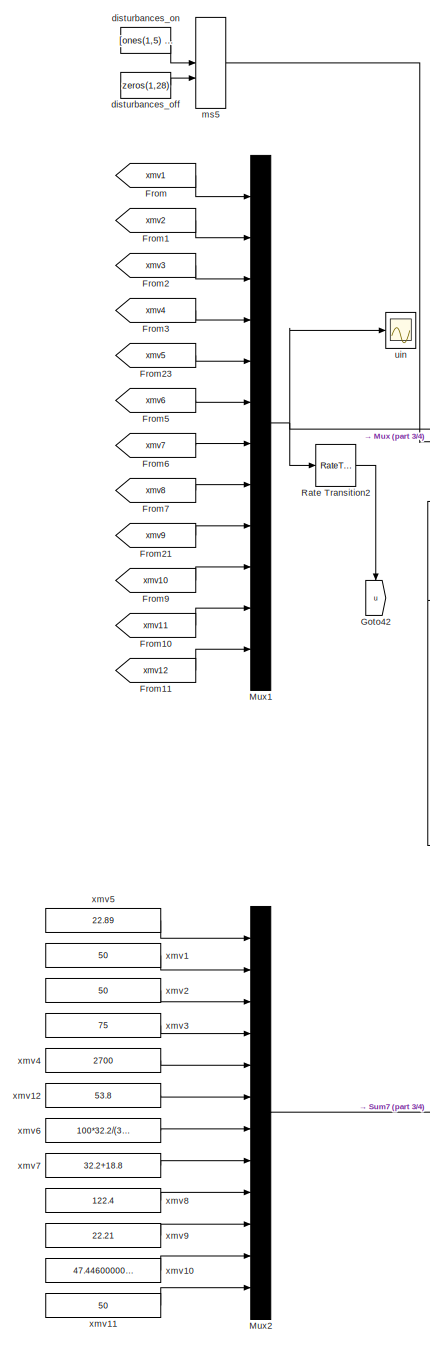
[diagram: root canvas - part 1/4, middle left region]
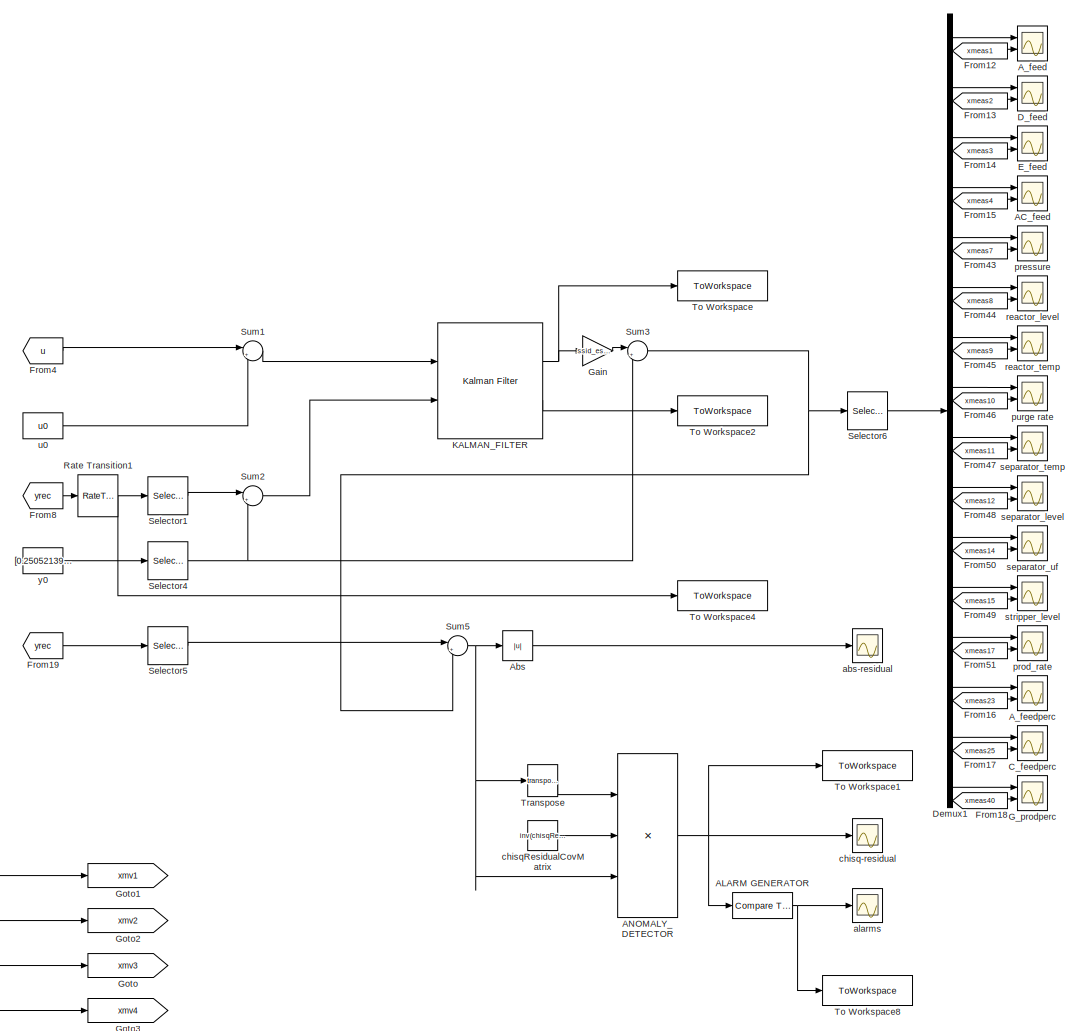
[diagram: root canvas - part 2/4, top right region]
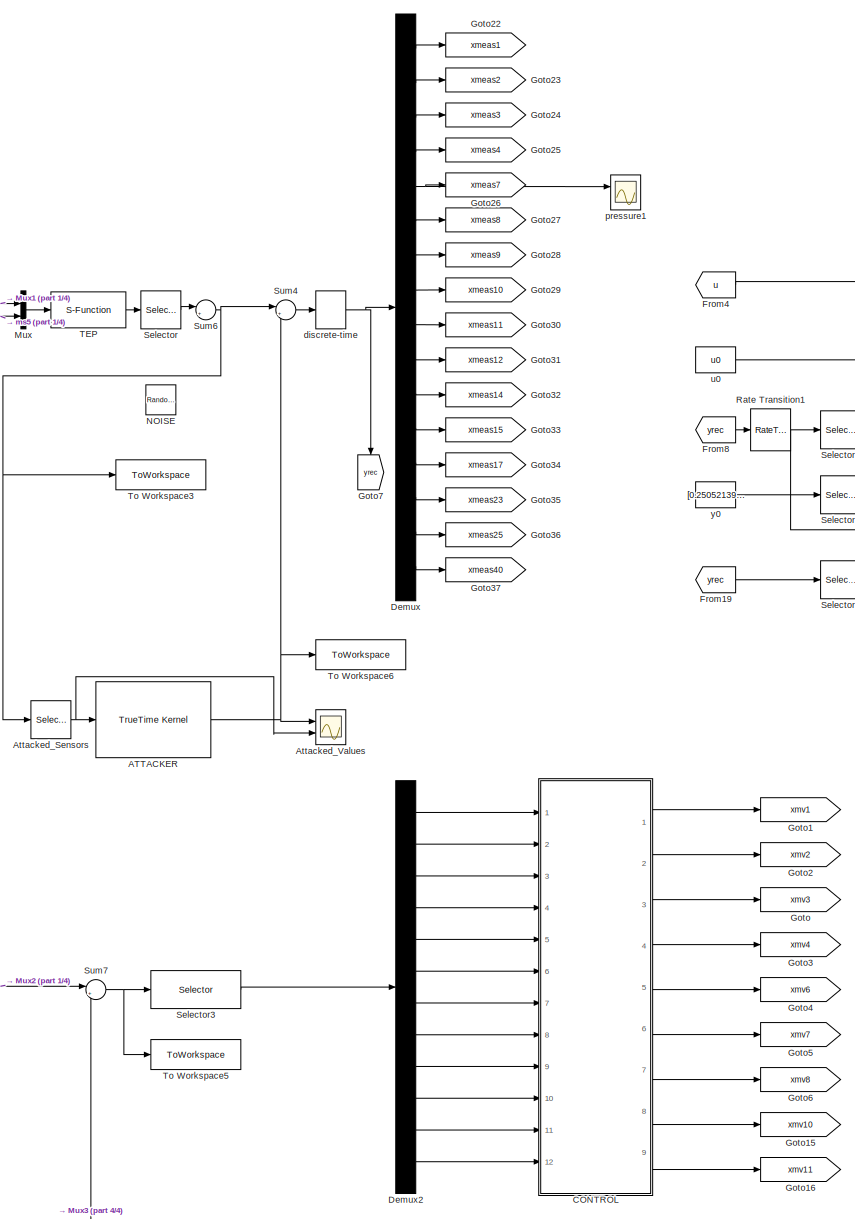
[diagram: root canvas - part 3/4, central region]
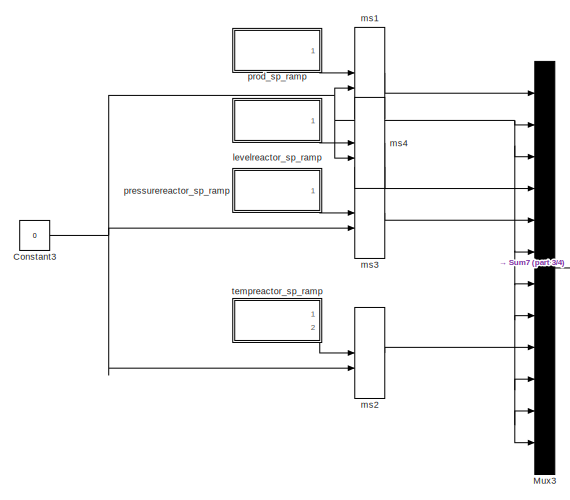
[diagram: root canvas - part 4/4, bottom left region]
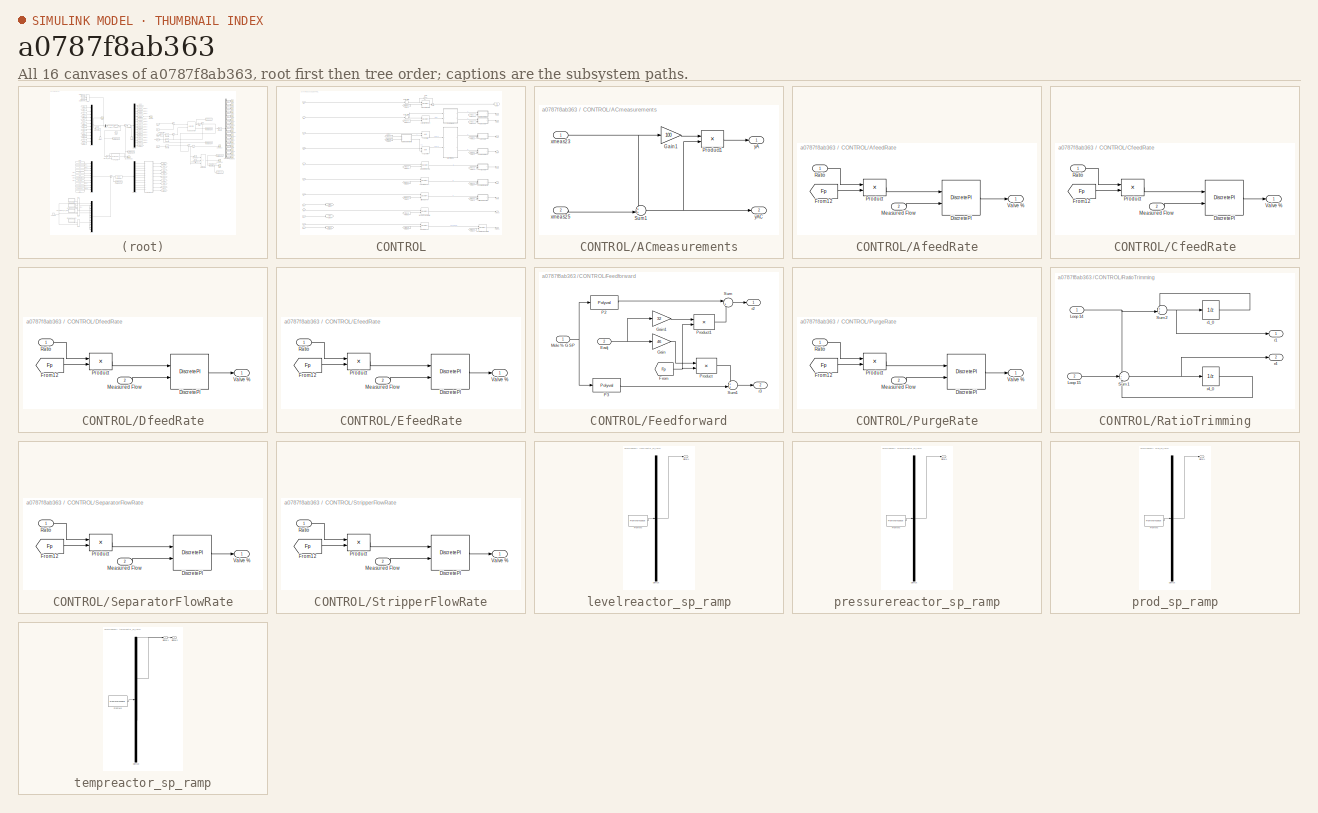
[diagram: thumbnail index - all 16 canvases of the model, root first then tree order]
MODEL slx_a0787f8ab363
KIND model
CONFIG AbsTol = auto
CONFIG EnableMultiTasking = off
CONFIG FixedStep = auto
CONFIG MaxStep = auto
CONFIG MinStep = auto
CONFIG RelTol = 1e-3
CONFIG SampleTimeConstraint = Unconstrained
CONFIG SolverName = VariableStepAuto
CONFIG StartTime = 0.0
CONFIG StopTime = 100
BLOCK [Scope] AC_feed
  Floating = off
  NumInputPorts = 2
  Ports = [2]
  ScopeSpecificationString = Simulink.scopes.TimeScopeBlockCfg('CurrentConfiguration', extmgr.ConfigurationSet(extmgr.Configuration('Core','General UI',true),extmgr.Configuration('Core','Source UI',true),extmgr.Configuration('Sources','WiredSimulink',true,'DataLoggingVariableName','ScopeData4','DataLoggingSaveFormat','StructureWithTime','DataLoggingDecimation','1','DataLoggingDecimateData',true),extmgr.Configuration('Visuals'...<+2075ch>
BLOCK [Reference] ALARM GENERATOR  REF=simulink/Logic and Bit
Operations/Compare
To Constant
  Ports = [1, 1]
  SourceBlock = simulink/Logic and Bit\nOperations/Compare\nTo Constant
  SourceProductBaseCode = SL
  SourceType = Compare To Constant
BLOCK [Product] ANOMALY_DETECTOR
  Inputs = 3
  Multiplication = Matrix(*)
  Ports = [3, 1]
BLOCK [Reference] ATTACKER  REF=truetime/TrueTime Kernel  (lib defined in slx_0362a698a4ec)
  Ports = [1, 1]
  SourceBlock = truetime/TrueTime Kernel
BLOCK [Scope] A_feed
  Floating = off
  NumInputPorts = 2
  Ports = [2]
  ScopeSpecificationString = Simulink.scopes.TimeScopeBlockCfg('CurrentConfiguration', extmgr.ConfigurationSet(extmgr.Configuration('Core','General UI',true),extmgr.Configuration('Core','Source UI',true),extmgr.Configuration('Sources','WiredSimulink',true,'DataLoggingVariableName','ScopeData1','DataLoggingSaveFormat','StructureWithTime','DataLoggingDecimation','1','DataLoggingDecimateData',true),extmgr.Configuration('Visuals'...<+2073ch>
BLOCK [Scope] A_feedperc
  Floating = off
  NumInputPorts = 2
  Ports = [2]
  ScopeSpecificationString = Simulink.scopes.TimeScopeBlockCfg('CurrentConfiguration', extmgr.ConfigurationSet(extmgr.Configuration('Core','General UI',true),extmgr.Configuration('Core','Source UI',true),extmgr.Configuration('Sources','WiredSimulink',true,'DataLoggingVariableName','ScopeData5','DataLoggingSaveFormat','StructureWithTime','DataLoggingDecimation','1','DataLoggingDecimateData',true),extmgr.Configuration('Visuals'...<+2089ch>
BLOCK [Abs] Abs
  SaturateOnIntegerOverflow = off
  ZeroCross = off
BLOCK [Selector] Attacked_Sensors
  IndexOptions = Index vector (dialog)
  Indices = [5   6   7   9  10  12]
  InputPortWidth = 16
  OutputSizes = 1
  Ports = [1, 1]
BLOCK [Scope] Attacked_Values
  Floating = off
  NumInputPorts = 2
  Ports = [2]
  ScopeSpecificationString = Simulink.scopes.TimeScopeBlockCfg('CurrentConfiguration', extmgr.ConfigurationSet(extmgr.Configuration('Core','General UI',true),extmgr.Configuration('Core','Source UI',true),extmgr.Configuration('Sources','WiredSimulink',true,'DataLoggingVariableName','ScopeData1','DataLoggingSaveFormat','StructureWithTime','DataLoggingDecimation','1','DataLoggingDecimateData',true),extmgr.Configuration('Visuals'...<+2774ch>
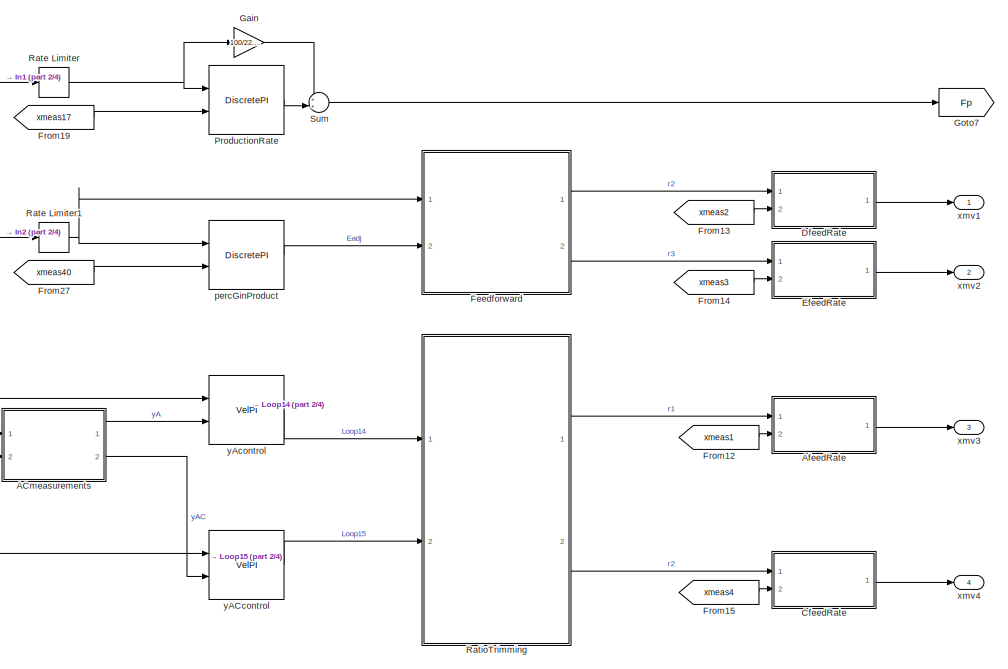
[diagram: CONTROL - part 1/4, top right region]
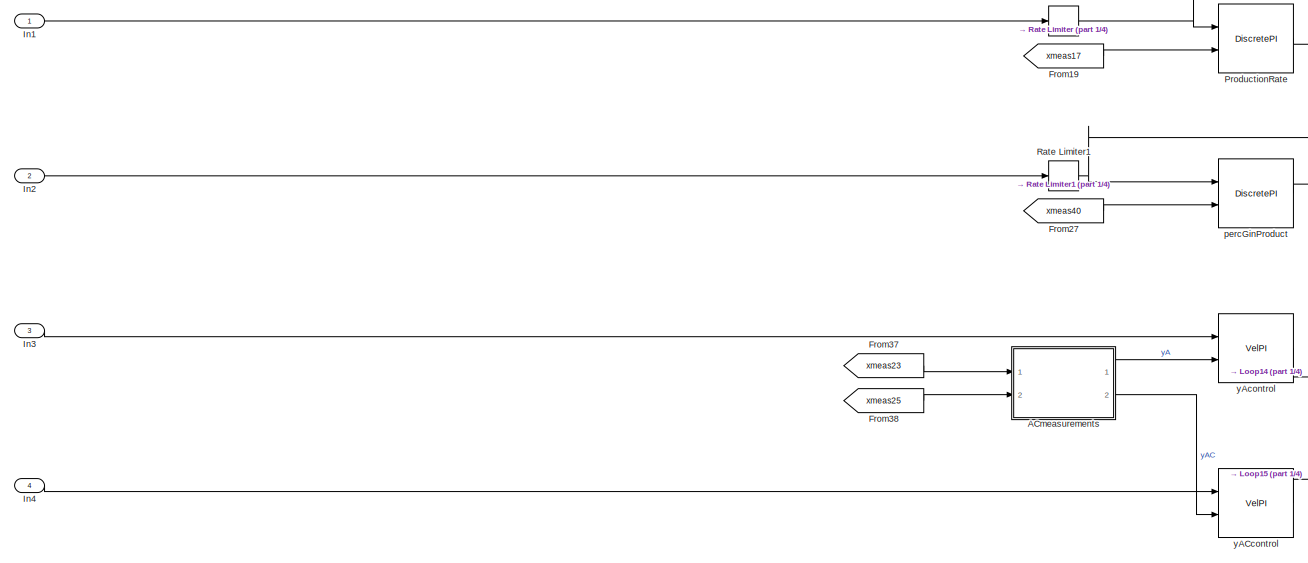
[diagram: CONTROL - part 2/4, top left region]
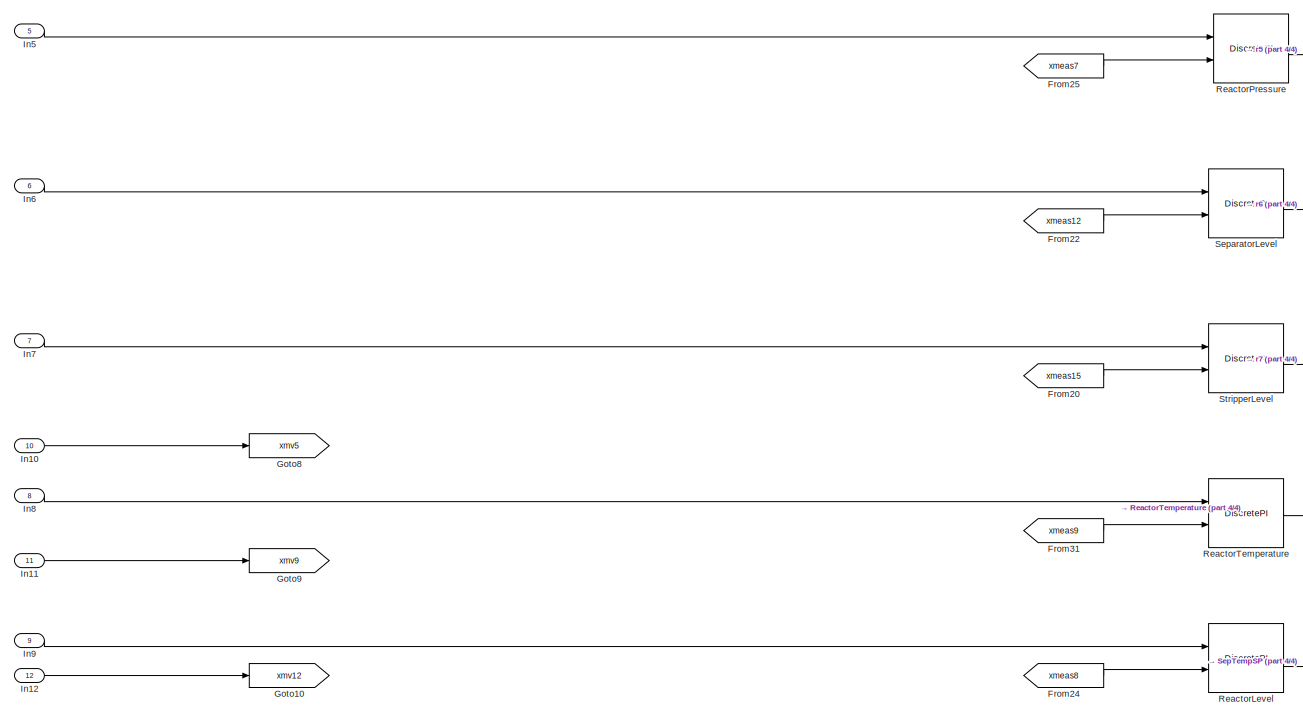
[diagram: CONTROL - part 3/4, bottom left region]
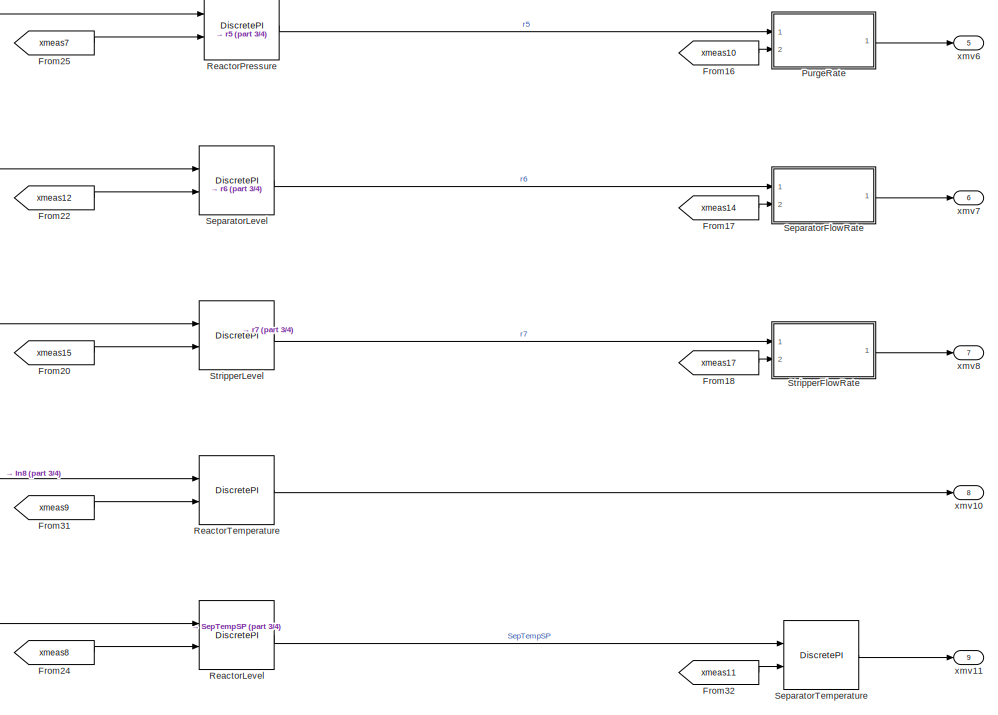
[diagram: CONTROL - part 4/4, bottom right region]
BLOCK [SubSystem] CONTROL
  Ports = [12, 9]
  RequestExecContextInheritance = off
BLOCK [SubSystem] CONTROL/ACmeasurements
  Ports = [2, 2]
  RequestExecContextInheritance = off
BLOCK [Gain] CONTROL/ACmeasurements/Gain1
  Gain = 100
  OutDataTypeStr = Inherit: Same as input
  ParamDataTypeStr = Inherit: Same as input
  SaturateOnIntegerOverflow = on
BLOCK [Product] CONTROL/ACmeasurements/Product1
  Inputs = */
  OutDataTypeStr = Inherit: Same as first input
  Ports = [2, 1]
  SaturateOnIntegerOverflow = on
BLOCK [Sum] CONTROL/ACmeasurements/Sum1
  Inputs = ++|
  Ports = [2, 1]
  SaturateOnIntegerOverflow = on
BLOCK [Inport] CONTROL/ACmeasurements/xmeas23
BLOCK [Inport] CONTROL/ACmeasurements/xmeas25
  Port = 2
BLOCK [Outport] CONTROL/ACmeasurements/yA
BLOCK [Outport] CONTROL/ACmeasurements/yAC
  Port = 2
BLOCK [SubSystem] CONTROL/AfeedRate
  Ports = [2, 1]
  RequestExecContextInheritance = off
BLOCK [Reference] CONTROL/AfeedRate/DiscretePI  REF=TElib/DiscretePI
  Ports = [2, 1]
  SourceBlock = TElib/DiscretePI
BLOCK [From] CONTROL/AfeedRate/From12
  GotoTag = Fp
  TagVisibility = global
BLOCK [Inport] CONTROL/AfeedRate/Measured Flow
  Port = 2
BLOCK [Product] CONTROL/AfeedRate/Product
  OutDataTypeStr = Inherit: Same as first input
  Ports = [2, 1]
  SaturateOnIntegerOverflow = on
BLOCK [Inport] CONTROL/AfeedRate/Ratio
BLOCK [Outport] CONTROL/AfeedRate/Valve %
BLOCK [SubSystem] CONTROL/CfeedRate
  Ports = [2, 1]
  RequestExecContextInheritance = off
BLOCK [Reference] CONTROL/CfeedRate/DiscretePI  REF=TElib/DiscretePI
  Ports = [2, 1]
  SourceBlock = TElib/DiscretePI
BLOCK [From] CONTROL/CfeedRate/From12
  GotoTag = Fp
  TagVisibility = global
BLOCK [Inport] CONTROL/CfeedRate/Measured Flow
  Port = 2
BLOCK [Product] CONTROL/CfeedRate/Product
  OutDataTypeStr = Inherit: Same as first input
  Ports = [2, 1]
  SaturateOnIntegerOverflow = on
BLOCK [Inport] CONTROL/CfeedRate/Ratio
BLOCK [Outport] CONTROL/CfeedRate/Valve %
BLOCK [SubSystem] CONTROL/DfeedRate
  Ports = [2, 1]
  RequestExecContextInheritance = off
BLOCK [Reference] CONTROL/DfeedRate/DiscretePI  REF=TElib/DiscretePI
  Ports = [2, 1]
  SourceBlock = TElib/DiscretePI
BLOCK [From] CONTROL/DfeedRate/From12
  GotoTag = Fp
  TagVisibility = global
BLOCK [Inport] CONTROL/DfeedRate/Measured Flow
  Port = 2
BLOCK [Product] CONTROL/DfeedRate/Product
  OutDataTypeStr = Inherit: Same as first input
  Ports = [2, 1]
  SaturateOnIntegerOverflow = on
BLOCK [Inport] CONTROL/DfeedRate/Ratio
BLOCK [Outport] CONTROL/DfeedRate/Valve %
BLOCK [SubSystem] CONTROL/EfeedRate
  Ports = [2, 1]
  RequestExecContextInheritance = off
BLOCK [Reference] CONTROL/EfeedRate/DiscretePI  REF=TElib/DiscretePI
  Ports = [2, 1]
  SourceBlock = TElib/DiscretePI
BLOCK [From] CONTROL/EfeedRate/From12
  GotoTag = Fp
  TagVisibility = global
BLOCK [Inport] CONTROL/EfeedRate/Measured Flow
  Port = 2
BLOCK [Product] CONTROL/EfeedRate/Product
  OutDataTypeStr = Inherit: Same as first input
  Ports = [2, 1]
  SaturateOnIntegerOverflow = on
BLOCK [Inport] CONTROL/EfeedRate/Ratio
BLOCK [Outport] CONTROL/EfeedRate/Valve %
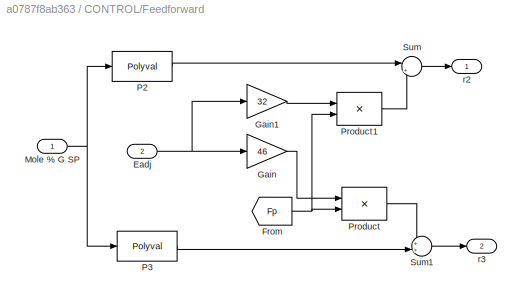
BLOCK [SubSystem] CONTROL/Feedforward
  Ports = [2, 2]
  RequestExecContextInheritance = off
BLOCK [Inport] CONTROL/Feedforward/Eadj
  Port = 2
BLOCK [From] CONTROL/Feedforward/From
  GotoTag = Fp
  TagVisibility = global
BLOCK [Gain] CONTROL/Feedforward/Gain
  Gain = 46
  OutDataTypeStr = Inherit: Same as input
  ParamDataTypeStr = Inherit: Same as input
  SaturateOnIntegerOverflow = on
BLOCK [Gain] CONTROL/Feedforward/Gain1
  Gain = 32
  OutDataTypeStr = Inherit: Same as input
  ParamDataTypeStr = Inherit: Same as input
  SaturateOnIntegerOverflow = on
BLOCK [Inport] CONTROL/Feedforward/Mole % G SP
BLOCK [Polyval] CONTROL/Feedforward/P2
  Coefs = [1.5192e-003  5.9446e-001  2.7690e-001]
BLOCK [Polyval] CONTROL/Feedforward/P3
  Coefs = [-1.1377e-003 -8.0893e-001  9.1060e+001]
BLOCK [Product] CONTROL/Feedforward/Product
  Inputs = */
  OutDataTypeStr = Inherit: Same as first input
  Ports = [2, 1]
  SaturateOnIntegerOverflow = on
BLOCK [Product] CONTROL/Feedforward/Product1
  Inputs = */
  OutDataTypeStr = Inherit: Same as first input
  Ports = [2, 1]
  SaturateOnIntegerOverflow = on
BLOCK [Sum] CONTROL/Feedforward/Sum
  Inputs = |+-
  Ports = [2, 1]
  SaturateOnIntegerOverflow = on
BLOCK [Sum] CONTROL/Feedforward/Sum1
  Inputs = ++|
  Ports = [2, 1]
  SaturateOnIntegerOverflow = on
BLOCK [Outport] CONTROL/Feedforward/r2
BLOCK [Outport] CONTROL/Feedforward/r3
  Port = 2
BLOCK [From] CONTROL/From12
  GotoTag = xmeas1
  TagVisibility = global
BLOCK [From] CONTROL/From13
  GotoTag = xmeas2
  TagVisibility = global
BLOCK [From] CONTROL/From14
  GotoTag = xmeas3
  TagVisibility = global
BLOCK [From] CONTROL/From15
  GotoTag = xmeas4
  TagVisibility = global
BLOCK [From] CONTROL/From16
  GotoTag = xmeas10
  TagVisibility = global
BLOCK [From] CONTROL/From17
  GotoTag = xmeas14
  TagVisibility = global
BLOCK [From] CONTROL/From18
  GotoTag = xmeas17
  TagVisibility = global
BLOCK [From] CONTROL/From19
  GotoTag = xmeas17
  TagVisibility = global
BLOCK [From] CONTROL/From20
  GotoTag = xmeas15
  TagVisibility = global
BLOCK [From] CONTROL/From22
  GotoTag = xmeas12
  TagVisibility = global
BLOCK [From] CONTROL/From24
  GotoTag = xmeas8
  TagVisibility = global
BLOCK [From] CONTROL/From25
  GotoTag = xmeas7
  TagVisibility = global
BLOCK [From] CONTROL/From27
  GotoTag = xmeas40
  TagVisibility = global
BLOCK [From] CONTROL/From31
  GotoTag = xmeas9
  TagVisibility = global
BLOCK [From] CONTROL/From32
  GotoTag = xmeas11
  TagVisibility = global
BLOCK [From] CONTROL/From37
  GotoTag = xmeas23
  TagVisibility = global
BLOCK [From] CONTROL/From38
  GotoTag = xmeas25
  TagVisibility = global
BLOCK [Gain] CONTROL/Gain
  Gain = 100/22.89
  OutDataTypeStr = Inherit: Same as input
  ParamDataTypeStr = Inherit: Same as input
  SaturateOnIntegerOverflow = on
BLOCK [Goto] CONTROL/Goto10
  GotoTag = xmv12
  TagVisibility = global
BLOCK [Goto] CONTROL/Goto7
  GotoTag = Fp
  TagVisibility = global
BLOCK [Goto] CONTROL/Goto8
  GotoTag = xmv5
  TagVisibility = global
BLOCK [Goto] CONTROL/Goto9
  GotoTag = xmv9
  TagVisibility = global
BLOCK [Inport] CONTROL/In1
BLOCK [Inport] CONTROL/In10
  Port = 10
BLOCK [Inport] CONTROL/In11
  Port = 11
BLOCK [Inport] CONTROL/In12
  Port = 12
BLOCK [Inport] CONTROL/In2
  Port = 2
BLOCK [Inport] CONTROL/In3
  Port = 3
BLOCK [Inport] CONTROL/In4
  Port = 4
BLOCK [Inport] CONTROL/In5
  Port = 5
BLOCK [Inport] CONTROL/In6
  Port = 6
BLOCK [Inport] CONTROL/In7
  Port = 7
BLOCK [Inport] CONTROL/In8
  Port = 8
BLOCK [Inport] CONTROL/In9
  Port = 9
BLOCK [Reference] CONTROL/ProductionRate  REF=TElib/DiscretePI
  Ports = [2, 1]
  SourceBlock = TElib/DiscretePI
BLOCK [SubSystem] CONTROL/PurgeRate
  Ports = [2, 1]
  RequestExecContextInheritance = off
BLOCK [Reference] CONTROL/PurgeRate/DiscretePI  REF=TElib/DiscretePI
  Ports = [2, 1]
  SourceBlock = TElib/DiscretePI
BLOCK [From] CONTROL/PurgeRate/From12
  GotoTag = Fp
  TagVisibility = global
BLOCK [Inport] CONTROL/PurgeRate/Measured Flow
  Port = 2
BLOCK [Product] CONTROL/PurgeRate/Product
  OutDataTypeStr = Inherit: Same as first input
  Ports = [2, 1]
  SaturateOnIntegerOverflow = on
BLOCK [Inport] CONTROL/PurgeRate/Ratio
BLOCK [Outport] CONTROL/PurgeRate/Valve %
BLOCK [RateLimiter] CONTROL/Rate Limiter
  FallingSlewLimit = -0.3*22.95/24
  RisingSlewLimit = 0.3*22.95/24
BLOCK [RateLimiter] CONTROL/Rate Limiter1
  FallingSlewLimit = -50/24
  RisingSlewLimit = 50/24
BLOCK [SubSystem] CONTROL/RatioTrimming
  Ports = [2, 2]
  RequestExecContextInheritance = off
BLOCK [Inport] CONTROL/RatioTrimming/Loop 14
BLOCK [Inport] CONTROL/RatioTrimming/Loop 15
  Port = 2
BLOCK [Sum] CONTROL/RatioTrimming/Sum1
  Inputs = -++
  Ports = [3, 1]
  SaturateOnIntegerOverflow = on
BLOCK [Sum] CONTROL/RatioTrimming/Sum2
  Inputs = ++|
  Ports = [2, 1]
  SaturateOnIntegerOverflow = on
BLOCK [Outport] CONTROL/RatioTrimming/r1
BLOCK [UnitDelay] CONTROL/RatioTrimming/r1_0
  HasFrameUpgradeWarning = on
  InitialCondition = 0.0043115
  SampleTime = 0.1
BLOCK [Outport] CONTROL/RatioTrimming/r4
  Port = 2
BLOCK [UnitDelay] CONTROL/RatioTrimming/r4_0
  HasFrameUpgradeWarning = on
  InitialCondition = 0.08929
  SampleTime = 0.1
BLOCK [Reference] CONTROL/ReactorLevel  REF=TElib/DiscretePI
  Ports = [2, 1]
  SourceBlock = TElib/DiscretePI
BLOCK [Reference] CONTROL/ReactorPressure  REF=TElib/DiscretePI
  Ports = [2, 1]
  SourceBlock = TElib/DiscretePI
BLOCK [Reference] CONTROL/ReactorTemperature  REF=TElib/DiscretePI
  Ports = [2, 1]
  SourceBlock = TElib/DiscretePI
BLOCK [SubSystem] CONTROL/SeparatorFlowRate
  Ports = [2, 1]
  RequestExecContextInheritance = off
BLOCK [Reference] CONTROL/SeparatorFlowRate/DiscretePI  REF=TElib/DiscretePI
  Ports = [2, 1]
  SourceBlock = TElib/DiscretePI
BLOCK [From] CONTROL/SeparatorFlowRate/From12
  GotoTag = Fp
  TagVisibility = global
BLOCK [Inport] CONTROL/SeparatorFlowRate/Measured Flow
  Port = 2
BLOCK [Product] CONTROL/SeparatorFlowRate/Product
  OutDataTypeStr = Inherit: Same as first input
  Ports = [2, 1]
  SaturateOnIntegerOverflow = on
BLOCK [Inport] CONTROL/SeparatorFlowRate/Ratio
BLOCK [Outport] CONTROL/SeparatorFlowRate/Valve %
BLOCK [Reference] CONTROL/SeparatorLevel  REF=TElib/DiscretePI
  Ports = [2, 1]
  SourceBlock = TElib/DiscretePI
BLOCK [Reference] CONTROL/SeparatorTemperature  REF=TElib/DiscretePI
  Ports = [2, 1]
  SourceBlock = TElib/DiscretePI
BLOCK [SubSystem] CONTROL/StripperFlowRate
  Ports = [2, 1]
  RequestExecContextInheritance = off
BLOCK [Reference] CONTROL/StripperFlowRate/DiscretePI  REF=TElib/DiscretePI
  Ports = [2, 1]
  SourceBlock = TElib/DiscretePI
BLOCK [From] CONTROL/StripperFlowRate/From12
  GotoTag = Fp
  TagVisibility = global
BLOCK [Inport] CONTROL/StripperFlowRate/Measured Flow
  Port = 2
BLOCK [Product] CONTROL/StripperFlowRate/Product
  OutDataTypeStr = Inherit: Same as first input
  Ports = [2, 1]
  SaturateOnIntegerOverflow = on
BLOCK [Inport] CONTROL/StripperFlowRate/Ratio
BLOCK [Outport] CONTROL/StripperFlowRate/Valve %
BLOCK [Reference] CONTROL/StripperLevel  REF=TElib/DiscretePI
  Ports = [2, 1]
  SourceBlock = TElib/DiscretePI
BLOCK [Sum] CONTROL/Sum
  Inputs = ++|
  Ports = [2, 1]
  SaturateOnIntegerOverflow = on
BLOCK [Reference] CONTROL/percGinProduct  REF=TElib/DiscretePI
  Ports = [2, 1]
  SourceBlock = TElib/DiscretePI
BLOCK [Outport] CONTROL/xmv1
BLOCK [Outport] CONTROL/xmv10
  Port = 8
BLOCK [Outport] CONTROL/xmv11
  Port = 9
BLOCK [Outport] CONTROL/xmv2
  Port = 2
BLOCK [Outport] CONTROL/xmv3
  Port = 3
BLOCK [Outport] CONTROL/xmv4
  Port = 4
BLOCK [Outport] CONTROL/xmv6
  Port = 5
BLOCK [Outport] CONTROL/xmv7
  Port = 6
BLOCK [Outport] CONTROL/xmv8
  Port = 7
BLOCK [Reference] CONTROL/yACcontrol  REF=TElib/DiscretePI/VelPI
  Ports = [2, 1]
  SourceBlock = TElib/DiscretePI/VelPI
BLOCK [Reference] CONTROL/yAcontrol  REF=TElib/DiscretePI/VelPI
  Ports = [2, 1]
  SourceBlock = TElib/DiscretePI/VelPI
BLOCK [Scope] C_feedperc
  Floating = off
  NumInputPorts = 2
  Ports = [2]
  ScopeSpecificationString = Simulink.scopes.TimeScopeBlockCfg('CurrentConfiguration', extmgr.ConfigurationSet(extmgr.Configuration('Core','General UI',true),extmgr.Configuration('Core','Source UI',true),extmgr.Configuration('Sources','WiredSimulink',true,'DataLoggingVariableName','ScopeData6','DataLoggingSaveFormat','StructureWithTime','DataLoggingDecimation','1','DataLoggingDecimateData',true),extmgr.Configuration('Visuals'...<+2073ch>
BLOCK [Constant] Constant3
  Value = 0
BLOCK [Scope] D_feed
  Floating = off
  NumInputPorts = 2
  Ports = [2]
  ScopeSpecificationString = Simulink.scopes.TimeScopeBlockCfg('CurrentConfiguration', extmgr.ConfigurationSet(extmgr.Configuration('Core','General UI',true),extmgr.Configuration('Core','Source UI',true),extmgr.Configuration('Sources','WiredSimulink',true,'DataLoggingVariableName','ScopeData2','DataLoggingSaveFormat','StructureWithTime','DataLoggingDecimation','1','DataLoggingDecimateData',true),extmgr.Configuration('Visuals'...<+2095ch>
BLOCK [Demux] Demux
  DisplayOption = none
  Outputs = 16
  Ports = [1, 16]
BLOCK [Demux] Demux1
  DisplayOption = none
  Outputs = 16
  Ports = [1, 16]
BLOCK [Demux] Demux2
  Outputs = 12
  Ports = [1, 12]
BLOCK [Scope] E_feed
  Floating = off
  NumInputPorts = 2
  Ports = [2]
  ScopeSpecificationString = Simulink.scopes.TimeScopeBlockCfg('CurrentConfiguration', extmgr.ConfigurationSet(extmgr.Configuration('Core','General UI',true),extmgr.Configuration('Core','Source UI',true),extmgr.Configuration('Sources','WiredSimulink',true,'DataLoggingVariableName','ScopeData3','DataLoggingSaveFormat','StructureWithTime','DataLoggingDecimation','1','DataLoggingDecimateData',true),extmgr.Configuration('Visuals'...<+2087ch>
BLOCK [From] From
  GotoTag = xmv1
BLOCK [From] From1
  GotoTag = xmv2
BLOCK [From] From10
  GotoTag = xmv11
BLOCK [From] From11
  GotoTag = xmv12
  TagVisibility = global
BLOCK [From] From12
  GotoTag = xmeas1
  TagVisibility = global
BLOCK [From] From13
  GotoTag = xmeas2
  TagVisibility = global
BLOCK [From] From14
  GotoTag = xmeas3
  TagVisibility = global
BLOCK [From] From15
  GotoTag = xmeas4
  TagVisibility = global
BLOCK [From] From16
  GotoTag = xmeas23
  TagVisibility = global
BLOCK [From] From17
  GotoTag = xmeas25
  TagVisibility = global
BLOCK [From] From18
  GotoTag = xmeas40
  TagVisibility = global
BLOCK [From] From19
  GotoTag = yrec
BLOCK [From] From2
  GotoTag = xmv3
BLOCK [From] From21
  GotoTag = xmv9
  TagVisibility = global
BLOCK [From] From23
  GotoTag = xmv5
  TagVisibility = global
BLOCK [From] From3
  GotoTag = xmv4
BLOCK [From] From4
  GotoTag = u
BLOCK [From] From43
  GotoTag = xmeas7
  TagVisibility = global
BLOCK [From] From44
  GotoTag = xmeas8
  TagVisibility = global
BLOCK [From] From45
  GotoTag = xmeas9
  TagVisibility = global
BLOCK [From] From46
  GotoTag = xmeas10
  TagVisibility = global
BLOCK [From] From47
  GotoTag = xmeas11
  TagVisibility = global
BLOCK [From] From48
  GotoTag = xmeas12
  TagVisibility = global
BLOCK [From] From49
  GotoTag = xmeas15
  TagVisibility = global
BLOCK [From] From5
  GotoTag = xmv6
BLOCK [From] From50
  GotoTag = xmeas14
  TagVisibility = global
BLOCK [From] From51
  GotoTag = xmeas17
  TagVisibility = global
BLOCK [From] From6
  GotoTag = xmv7
BLOCK [From] From7
  GotoTag = xmv8
BLOCK [From] From8
  GotoTag = yrec
BLOCK [From] From9
  GotoTag = xmv10
BLOCK [Scope] G_prodperc
  Floating = off
  NumInputPorts = 2
  Ports = [2]
  ScopeSpecificationString = Simulink.scopes.TimeScopeBlockCfg('CurrentConfiguration', extmgr.ConfigurationSet(extmgr.Configuration('Core','General UI',true),extmgr.Configuration('Core','Source UI',true),extmgr.Configuration('Sources','WiredSimulink',true,'DataLoggingVariableName','ScopeData7','DataLoggingSaveFormat','StructureWithTime','DataLoggingDecimation','1','DataLoggingDecimateData',true),extmgr.Configuration('Visuals'...<+2081ch>
BLOCK [Gain] Gain
  Gain = ssid_est.C
  Multiplication = Matrix(K*u)
BLOCK [Goto] Goto
  GotoTag = xmv3
BLOCK [Goto] Goto1
  GotoTag = xmv1
BLOCK [Goto] Goto15
  GotoTag = xmv10
BLOCK [Goto] Goto16
  GotoTag = xmv11
BLOCK [Goto] Goto2
  GotoTag = xmv2
BLOCK [Goto] Goto22
  GotoTag = xmeas1
  TagVisibility = global
BLOCK [Goto] Goto23
  GotoTag = xmeas2
  TagVisibility = global
BLOCK [Goto] Goto24
  GotoTag = xmeas3
  TagVisibility = global
BLOCK [Goto] Goto25
  GotoTag = xmeas4
  TagVisibility = global
BLOCK [Goto] Goto26
  GotoTag = xmeas7
  TagVisibility = global
BLOCK [Goto] Goto27
  GotoTag = xmeas8
  TagVisibility = global
BLOCK [Goto] Goto28
  GotoTag = xmeas9
  TagVisibility = global
BLOCK [Goto] Goto29
  GotoTag = xmeas10
  TagVisibility = global
BLOCK [Goto] Goto3
  GotoTag = xmv4
BLOCK [Goto] Goto30
  GotoTag = xmeas11
  TagVisibility = global
BLOCK [Goto] Goto31
  GotoTag = xmeas12
  TagVisibility = global
BLOCK [Goto] Goto32
  GotoTag = xmeas14
  TagVisibility = global
BLOCK [Goto] Goto33
  GotoTag = xmeas15
  TagVisibility = global
BLOCK [Goto] Goto34
  GotoTag = xmeas17
  TagVisibility = global
BLOCK [Goto] Goto35
  GotoTag = xmeas23
  TagVisibility = global
BLOCK [Goto] Goto36
  GotoTag = xmeas25
  TagVisibility = global
BLOCK [Goto] Goto37
  GotoTag = xmeas40
  TagVisibility = global
BLOCK [Goto] Goto4
  GotoTag = xmv6
BLOCK [Goto] Goto42
  GotoTag = u
  NameLocation = right
BLOCK [Goto] Goto5
  GotoTag = xmv7
BLOCK [Goto] Goto6
  GotoTag = xmv8
BLOCK [Goto] Goto7
  GotoTag = yrec
  NameLocation = right
BLOCK [Reference] KALMAN_FILTER  REF=ctrlSharedLib/Kalman Filter
  Ports = [2, 2]
  SourceBlock = ctrlSharedLib/Kalman Filter
  SourceProductBaseCode = CT,ID
  SourceType = ctrlKalmanFilter
BLOCK [Mux] Mux
  DisplayOption = bar
  Inputs = 2
  Ports = [2, 1]
BLOCK [Mux] Mux1
  DisplayOption = bar
  Inputs = 12
  Ports = [12, 1]
BLOCK [Mux] Mux2
  DisplayOption = bar
  Inputs = 12
  Ports = [12, 1]
BLOCK [Mux] Mux3
  DisplayOption = bar
  Inputs = 12
  Ports = [12, 1]
BLOCK [RandomNumber] NOISE
  SampleTime = 5e-4
  Variance = 0.001*y0
BLOCK [RateTransition] Rate Transition1
  Commented = through
  InitialCondition = y0
  OutPortSampleTime = 5e-4
BLOCK [RateTransition] Rate Transition2
  OutPortSampleTime = 5e-4
BLOCK [Selector] Selector
  IndexOptions = Index vector (dialog)
  Indices = [1:4, 7:12, 14, 15, 17, 23, 25, 40]
  InputPortWidth = 41
  OutputSizes = 1
  Ports = [1, 1]
BLOCK [Selector] Selector1
  IndexOptions = Index vector (dialog)
  Indices = y0_selected
  InputPortWidth = 16
  OutputSizes = 1
  Ports = [1, 1]
BLOCK [Selector] Selector3
  IndexOptions = Index vector (dialog)
  Indices = [1,6,7,8,5,3,2,9,4,10,11,12]
  InputPortWidth = 12
  OutputSizes = 1
  Ports = [1, 1]
BLOCK [Selector] Selector4
  IndexOptions = Index vector (dialog)
  Indices = y0_selected
  InputPortWidth = 16
  OutputSizes = 1
  Ports = [1, 1]
BLOCK [Selector] Selector5
  IndexOptions = Index vector (dialog)
  Indices = y0_selected
  InputPortWidth = 16
  OutputSizes = 1
  Ports = [1, 1]
BLOCK [Selector] Selector6
  IndexOptions = Index vector (dialog)
  Indices = y0_selectedinv
  InputPortWidth = 16
  OutputSizes = 1
  Ports = [1, 1]
BLOCK [Sum] Sum1
  Inputs = |+-
  Ports = [2, 1]
BLOCK [Sum] Sum2
  Inputs = |+-
  Ports = [2, 1]
BLOCK [Sum] Sum3
  Inputs = |++
  Ports = [2, 1]
BLOCK [Sum] Sum4
  Inputs = |++
  Ports = [2, 1]
BLOCK [Sum] Sum5
  Inputs = |+-
  Ports = [2, 1]
BLOCK [Sum] Sum6
  Inputs = |++
  Ports = [2, 1]
BLOCK [Sum] Sum7
  Inputs = |++
  Ports = [2, 1]
BLOCK [S-Function] TEP
  EnableBusSupport = off
  FunctionName = temexd_mod
  Parameters = [],[], 0
  Ports = [1, 1]
  SFcnIsStateOwnerBlock = off
  SFunctionDeploymentMode = off
BLOCK [ToWorkspace] To Workspace
  FixptAsFi = on
  MaxDataPoints = inf
  Ports = [1]
  SampleTime = 0.01
  VariableName = states_estim
BLOCK [ToWorkspace] To Workspace1
  FixptAsFi = on
  MaxDataPoints = inf
  Ports = [1]
  SampleTime = 0.01
  VariableName = chisq_resid
BLOCK [ToWorkspace] To Workspace2
  FixptAsFi = on
  MaxDataPoints = inf
  Ports = [1]
  SampleTime = 0.01
  VariableName = PKalman
BLOCK [ToWorkspace] To Workspace3
  FixptAsFi = on
  MaxDataPoints = inf
  Ports = [1]
  SampleTime = 0.01
  VariableName = output_real
BLOCK [ToWorkspace] To Workspace4
  FixptAsFi = on
  MaxDataPoints = inf
  Ports = [1]
  SampleTime = 0.01
  VariableName = output_rec
BLOCK [ToWorkspace] To Workspace5
  FixptAsFi = on
  MaxDataPoints = inf
  Ports = [1]
  SampleTime = 0.01
  VariableName = ysp
BLOCK [ToWorkspace] To Workspace6
  FixptAsFi = on
  MaxDataPoints = inf
  Ports = [1]
  SampleTime = 5e-4
  VariableName = attack
BLOCK [ToWorkspace] To Workspace8
  FixptAsFi = on
  MaxDataPoints = inf
  Ports = [1]
  SampleTime = 5e-4
  VariableName = alarms
BLOCK [Math] Transpose
  Operator = transpose
  Ports = [1, 1]
BLOCK [Scope] abs-residual
  Floating = off
  NumInputPorts = 1
  Ports = [1]
  ScopeSpecificationString = Simulink.scopes.TimeScopeBlockCfg('CurrentConfiguration', extmgr.ConfigurationSet(extmgr.Configuration('Core','General UI',true),extmgr.Configuration('Core','Source UI',true),extmgr.Configuration('Sources','WiredSimulink',true,'DataLoggingVariableName','ScopeData2','DataLoggingSaveFormat','StructureWithTime','DataLoggingDecimation','1','DataLoggingDecimateData',true),extmgr.Configuration('Visuals'...<+2185ch>
BLOCK [Scope] alarms
  Floating = off
  NumInputPorts = 1
  Ports = [1]
  ScopeSpecificationString = Simulink.scopes.TimeScopeBlockCfg('CurrentConfiguration', extmgr.ConfigurationSet(extmgr.Configuration('Core','General UI',true),extmgr.Configuration('Core','Source UI',true),extmgr.Configuration('Sources','WiredSimulink',true,'DataLoggingVariableName','ScopeData1','DataLoggingSaveFormat','StructureWithTime','DataLoggingDecimation','1','DataLoggingDecimateData',true),extmgr.Configuration('Visuals'...<+2077ch>
BLOCK [Scope] chisq-residual
  Floating = off
  NumInputPorts = 1
  Ports = [1]
  ScopeSpecificationString = Simulink.scopes.TimeScopeBlockCfg('CurrentConfiguration', extmgr.ConfigurationSet(extmgr.Configuration('Core','General UI',true),extmgr.Configuration('Core','Source UI',true),extmgr.Configuration('Sources','WiredSimulink',true,'DataLoggingVariableName','ScopeData3','DataLoggingSaveFormat','StructureWithTime','DataLoggingDecimation','1','DataLoggingDecimateData',true),extmgr.Configuration('Visuals'...<+2073ch>
BLOCK [Constant] chisqResidualCovMatrix
  Value = inv(chisqResidualExp)
BLOCK [RateTransition] discrete-time
  OutPortSampleTime = 5e-4
BLOCK [Constant] disturbances_off
  Value = zeros(1,28)
BLOCK [Constant] disturbances_on
  Value = [ones(1,5) ,0,1,zeros(1,5), zeros(1, 16)]
BLOCK [SubSystem] levelreactor_sp_ramp
  ClipboardFcn = sigbuilder_block('clipboard');
  CloseFcn = sigbuilder_block('close');
  ContinueFcn = sigbuilder_block('continue');
  CopyFcn = sigbuilder_block('copy');
  DeleteFcn = sigbuilder_block('delete');
  LoadFcn = sigbuilder_block('load');
  MaskHideContents = on
  ModelCloseFcn = sigbuilder_block('modelClose');
  NameChangeFcn = sigbuilder_block('namechange');
  OpenFcn = sigbuilder_block('open',[437.6 199.2 550.4 400 ]);
  PauseFcn = sigbuilder_block('pause');
  Ports = [0, 1]
  PreSaveFcn = sigbuilder_block('preSave');
  RequestExecContextInheritance = off
  StartFcn = sigbuilder_block('start');
  StopFcn = sigbuilder_block('stop');
  Tag = STV Subsys
BLOCK [Demux] levelreactor_sp_ramp/Demux
  DisplayOption = none
  Outputs = 1
  Ports = [1, 1]
  Tag = STV Demux
BLOCK [FromWorkspace] levelreactor_sp_ramp/FromWs
  Tag = STV FromWs
  VariableName = tuvar
BLOCK [Outport] levelreactor_sp_ramp/Signal 1
  Tag = STV Outport
BLOCK [ManualSwitch] ms1
  CurrentSetting = 0
BLOCK [ManualSwitch] ms2
BLOCK [ManualSwitch] ms3
  CurrentSetting = 0
BLOCK [ManualSwitch] ms4
BLOCK [ManualSwitch] ms5
BLOCK [Scope] pressure
  Floating = off
  NumInputPorts = 2
  Ports = [2]
  ScopeSpecificationString = Simulink.scopes.TimeScopeBlockCfg('CurrentConfiguration', extmgr.ConfigurationSet(extmgr.Configuration('Core','General UI',true),extmgr.Configuration('Core','Source UI',true),extmgr.Configuration('Sources','WiredSimulink',true,'DataLoggingVariableName','ScopeData1','DataLoggingSaveFormat','StructureWithTime','DataLoggingDecimation','1','DataLoggingDecimateData',true),extmgr.Configuration('Visuals'...<+2093ch>
BLOCK [Scope] pressure1
  Floating = off
  NumInputPorts = 2
  Ports = [2]
  ScopeSpecificationString = Simulink.scopes.TimeScopeBlockCfg('CurrentConfiguration', extmgr.ConfigurationSet(extmgr.Configuration('Core','General UI',true),extmgr.Configuration('Core','Source UI',true),extmgr.Configuration('Sources','WiredSimulink',true,'DataLoggingVariableName','ScopeData1','DataLoggingSaveFormat','StructureWithTime','DataLoggingDecimation','1','DataLoggingDecimateData',true),extmgr.Configuration('Visuals'...<+2094ch>
BLOCK [SubSystem] pressurereactor_sp_ramp
  ClipboardFcn = sigbuilder_block('clipboard');
  CloseFcn = sigbuilder_block('close');
  ContinueFcn = sigbuilder_block('continue');
  CopyFcn = sigbuilder_block('copy');
  DeleteFcn = sigbuilder_block('delete');
  LoadFcn = sigbuilder_block('load');
  MaskHideContents = on
  ModelCloseFcn = sigbuilder_block('modelClose');
  NameChangeFcn = sigbuilder_block('namechange');
  OpenFcn = sigbuilder_block('open',[437.6 199.2 550.4 400 ]);
  PauseFcn = sigbuilder_block('pause');
  Ports = [0, 1]
  PreSaveFcn = sigbuilder_block('preSave');
  RequestExecContextInheritance = off
  StartFcn = sigbuilder_block('start');
  StopFcn = sigbuilder_block('stop');
  Tag = STV Subsys
BLOCK [Demux] pressurereactor_sp_ramp/Demux
  DisplayOption = none
  Outputs = 1
  Ports = [1, 1]
  Tag = STV Demux
BLOCK [FromWorkspace] pressurereactor_sp_ramp/FromWs
  Tag = STV FromWs
  VariableName = tuvar
BLOCK [Outport] pressurereactor_sp_ramp/Signal 1
  Tag = STV Outport
BLOCK [Scope] prod_rate
  Floating = off
  NumInputPorts = 2
  Ports = [2]
  ScopeSpecificationString = Simulink.scopes.TimeScopeBlockCfg('CurrentConfiguration', extmgr.ConfigurationSet(extmgr.Configuration('Core','General UI',true),extmgr.Configuration('Core','Source UI',true),extmgr.Configuration('Sources','WiredSimulink',true,'DataLoggingVariableName','ScopeData2','DataLoggingSaveFormat','StructureWithTime','DataLoggingDecimation','1','DataLoggingDecimateData',true),extmgr.Configuration('Visuals'...<+2078ch>
BLOCK [SubSystem] prod_sp_ramp
  ClipboardFcn = sigbuilder_block('clipboard');
  CloseFcn = sigbuilder_block('close');
  ContinueFcn = sigbuilder_block('continue');
  CopyFcn = sigbuilder_block('copy');
  DeleteFcn = sigbuilder_block('delete');
  LoadFcn = sigbuilder_block('load');
  MaskHideContents = on
  ModelCloseFcn = sigbuilder_block('modelClose');
  NameChangeFcn = sigbuilder_block('namechange');
  OpenFcn = sigbuilder_block('open',[437.6 199.2 550.4 400 ]);
  PauseFcn = sigbuilder_block('pause');
  Ports = [0, 1]
  PreSaveFcn = sigbuilder_block('preSave');
  RequestExecContextInheritance = off
  StartFcn = sigbuilder_block('start');
  StopFcn = sigbuilder_block('stop');
  Tag = STV Subsys
BLOCK [Demux] prod_sp_ramp/Demux
  DisplayOption = none
  Outputs = 1
  Ports = [1, 1]
  Tag = STV Demux
BLOCK [FromWorkspace] prod_sp_ramp/FromWs
  Tag = STV FromWs
  VariableName = tuvar
BLOCK [Outport] prod_sp_ramp/Signal 1
  Tag = STV Outport
BLOCK [Scope] purge rate
  Floating = off
  NumInputPorts = 2
  Ports = [2]
  ScopeSpecificationString = Simulink.scopes.TimeScopeBlockCfg('CurrentConfiguration', extmgr.ConfigurationSet(extmgr.Configuration('Core','General UI',true),extmgr.Configuration('Core','Source UI',true),extmgr.Configuration('Sources','WiredSimulink',true,'DataLoggingVariableName','ScopeData3','DataLoggingSaveFormat','StructureWithTime','DataLoggingDecimation','1','DataLoggingDecimateData',true),extmgr.Configuration('Visuals'...<+2070ch>
BLOCK [Scope] reactor_level
  Floating = off
  NumInputPorts = 2
  Ports = [2]
  ScopeSpecificationString = Simulink.scopes.TimeScopeBlockCfg('CurrentConfiguration', extmgr.ConfigurationSet(extmgr.Configuration('Core','General UI',true),extmgr.Configuration('Core','Source UI',true),extmgr.Configuration('Sources','WiredSimulink',true,'DataLoggingVariableName','ScopeData4','DataLoggingSaveFormat','StructureWithTime','DataLoggingDecimation','1','DataLoggingDecimateData',true),extmgr.Configuration('Visuals'...<+2076ch>
BLOCK [Scope] reactor_temp
  Floating = off
  NumInputPorts = 2
  Ports = [2]
  ScopeSpecificationString = Simulink.scopes.TimeScopeBlockCfg('CurrentConfiguration', extmgr.ConfigurationSet(extmgr.Configuration('Core','General UI',true),extmgr.Configuration('Core','Source UI',true),extmgr.Configuration('Sources','WiredSimulink',true,'DataLoggingVariableName','ScopeData5','DataLoggingSaveFormat','StructureWithTime','DataLoggingDecimation','1','DataLoggingDecimateData',true),extmgr.Configuration('Visuals'...<+2087ch>
BLOCK [Scope] separator_level
  Floating = off
  NumInputPorts = 2
  Ports = [2]
  ScopeSpecificationString = Simulink.scopes.TimeScopeBlockCfg('CurrentConfiguration', extmgr.ConfigurationSet(extmgr.Configuration('Core','General UI',true),extmgr.Configuration('Core','Source UI',true),extmgr.Configuration('Sources','WiredSimulink',true,'DataLoggingVariableName','ScopeData6','DataLoggingSaveFormat','StructureWithTime','DataLoggingDecimation','1','DataLoggingDecimateData',true),extmgr.Configuration('Visuals'...<+2074ch>
BLOCK [Scope] separator_temp
  Floating = off
  NumInputPorts = 2
  Ports = [2]
  ScopeSpecificationString = Simulink.scopes.TimeScopeBlockCfg('CurrentConfiguration', extmgr.ConfigurationSet(extmgr.Configuration('Core','General UI',true),extmgr.Configuration('Core','Source UI',true),extmgr.Configuration('Sources','WiredSimulink',true,'DataLoggingVariableName','ScopeData7','DataLoggingSaveFormat','StructureWithTime','DataLoggingDecimation','1','DataLoggingDecimateData',true),extmgr.Configuration('Visuals'...<+2108ch>
BLOCK [Scope] separator_uf
  Floating = off
  NumInputPorts = 2
  Ports = [2]
  ScopeSpecificationString = Simulink.scopes.TimeScopeBlockCfg('CurrentConfiguration', extmgr.ConfigurationSet(extmgr.Configuration('Core','General UI',true),extmgr.Configuration('Core','Source UI',true),extmgr.Configuration('Sources','WiredSimulink',true,'DataLoggingVariableName','ScopeData8','DataLoggingSaveFormat','StructureWithTime','DataLoggingDecimation','1','DataLoggingDecimateData',true),extmgr.Configuration('Visuals'...<+2080ch>
BLOCK [Scope] stripper_level
  Floating = off
  NumInputPorts = 2
  Ports = [2]
  ScopeSpecificationString = Simulink.scopes.TimeScopeBlockCfg('CurrentConfiguration', extmgr.ConfigurationSet(extmgr.Configuration('Core','General UI',true),extmgr.Configuration('Core','Source UI',true),extmgr.Configuration('Sources','WiredSimulink',true,'DataLoggingSaveFormat','StructureWithTime','DataLoggingDecimation','1','DataLoggingDecimateData',true),extmgr.Configuration('Visuals','Time Domain',true,'SerializedDisplays...<+2043ch>
BLOCK [SubSystem] tempreactor_sp_ramp
  ClipboardFcn = sigbuilder_block('clipboard');
  CloseFcn = sigbuilder_block('close');
  ContinueFcn = sigbuilder_block('continue');
  CopyFcn = sigbuilder_block('copy');
  DeleteFcn = sigbuilder_block('delete');
  LoadFcn = sigbuilder_block('load');
  MaskHideContents = on
  ModelCloseFcn = sigbuilder_block('modelClose');
  NameChangeFcn = sigbuilder_block('namechange');
  OpenFcn = sigbuilder_block('open',[437.6 199.2 550.4 400 ]);
  PauseFcn = sigbuilder_block('pause');
  Ports = [0, 2]
  PreSaveFcn = sigbuilder_block('preSave');
  RequestExecContextInheritance = off
  StartFcn = sigbuilder_block('start');
  StopFcn = sigbuilder_block('stop');
  Tag = STV Subsys
BLOCK [Demux] tempreactor_sp_ramp/Demux
  DisplayOption = none
  Outputs = 2
  Ports = [1, 2]
  Tag = STV Demux
BLOCK [FromWorkspace] tempreactor_sp_ramp/FromWs
  Tag = STV FromWs
  VariableName = tuvar
BLOCK [Outport] tempreactor_sp_ramp/Signal 1
  Tag = STV Outport
BLOCK [Outport] tempreactor_sp_ramp/Signal 2
  Port = 2
  Tag = STV Outport
BLOCK [Constant] u0
  Value = u0
  VectorParams1D = off
BLOCK [Scope] uin 
  Floating = off
  NumInputPorts = 1
  Ports = [1]
  ScopeSpecificationString = Simulink.scopes.TimeScopeBlockCfg('CurrentConfiguration', extmgr.ConfigurationSet(extmgr.Configuration('Core','General UI',true),extmgr.Configuration('Core','Source UI',true),extmgr.Configuration('Sources','WiredSimulink',true,'DataLoggingVariableName','ScopeData1','DataLoggingSaveFormat','StructureWithTime','DataLoggingDecimation','1','DataLoggingDecimateData',true),extmgr.Configuration('Visuals'...<+2337ch>
BLOCK [Constant] xmv1
  Value = 50
BLOCK [Constant] xmv10
  Value = 47.4460000000000
BLOCK [Constant] xmv11
  Value = 50
BLOCK [Constant] xmv12
  Value = 53.8
BLOCK [Constant] xmv2
  Value = 50
BLOCK [Constant] xmv3
  Value = 75
BLOCK [Constant] xmv4
  Value = 2700
BLOCK [Constant] xmv5
  Value = 22.89
BLOCK [Constant] xmv6
  Value = 100*32.2/(32.2+18.8)
BLOCK [Constant] xmv7
  Value = 32.2+18.8
BLOCK [Constant] xmv8
  Value = 122.4
BLOCK [Constant] xmv9
  Value = 22.21
BLOCK [Constant] y0
  Value = [0.250521392427743	3664.03885068600	4509.26819729219	9.34774262670434	2704.99998424633	74.9999967369169	120.399999605037	0.337117068414812	80.1094039945582	50.0000005822578	25.1601724780539	49.9999996443422	22.9487308033689	32.1876133826046	26.3832900314723	53.7239797556671]'
NET ALARM GENERATOR:1 -> To Workspace8:1, alarms:1
NET ANOMALY_DETECTOR:1 -> ALARM GENERATOR:1, To Workspace1:1, chisq-residual:1
NET ATTACKER:1 -> Attacked_Values:1, Sum4:2, To Workspace6:1
LINE Abs:1 -> abs-residual:1
NET Attacked_Sensors:1 -> ATTACKER:1, Attacked_Values:2
LINE CONTROL/ACmeasurements/Gain1:1 -> CONTROL/ACmeasurements/Product1:1
LINE CONTROL/ACmeasurements/Product1:1 -> CONTROL/ACmeasurements/yA:1
NET CONTROL/ACmeasurements/Sum1:1 -> CONTROL/ACmeasurements/Product1:2, CONTROL/ACmeasurements/yAC:1
NET CONTROL/ACmeasurements/xmeas23:1 -> CONTROL/ACmeasurements/Gain1:1, CONTROL/ACmeasurements/Sum1:1
LINE CONTROL/ACmeasurements/xmeas25:1 -> CONTROL/ACmeasurements/Sum1:2
LINE CONTROL/ACmeasurements:1 -> CONTROL/yAcontrol:2
LINE CONTROL/ACmeasurements:2 -> CONTROL/yACcontrol:2
LINE CONTROL/AfeedRate/DiscretePI:1 -> CONTROL/AfeedRate/Valve %:1
LINE CONTROL/AfeedRate/From12:1 -> CONTROL/AfeedRate/Product:2
LINE CONTROL/AfeedRate/Measured Flow:1 -> CONTROL/AfeedRate/DiscretePI:2
LINE CONTROL/AfeedRate/Product:1 -> CONTROL/AfeedRate/DiscretePI:1
LINE CONTROL/AfeedRate/Ratio:1 -> CONTROL/AfeedRate/Product:1
LINE CONTROL/AfeedRate:1 -> CONTROL/xmv3:1
LINE CONTROL/CfeedRate/DiscretePI:1 -> CONTROL/CfeedRate/Valve %:1
LINE CONTROL/CfeedRate/From12:1 -> CONTROL/CfeedRate/Product:2
LINE CONTROL/CfeedRate/Measured Flow:1 -> CONTROL/CfeedRate/DiscretePI:2
LINE CONTROL/CfeedRate/Product:1 -> CONTROL/CfeedRate/DiscretePI:1
LINE CONTROL/CfeedRate/Ratio:1 -> CONTROL/CfeedRate/Product:1
LINE CONTROL/CfeedRate:1 -> CONTROL/xmv4:1
LINE CONTROL/DfeedRate/DiscretePI:1 -> CONTROL/DfeedRate/Valve %:1
LINE CONTROL/DfeedRate/From12:1 -> CONTROL/DfeedRate/Product:2
LINE CONTROL/DfeedRate/Measured Flow:1 -> CONTROL/DfeedRate/DiscretePI:2
LINE CONTROL/DfeedRate/Product:1 -> CONTROL/DfeedRate/DiscretePI:1
LINE CONTROL/DfeedRate/Ratio:1 -> CONTROL/DfeedRate/Product:1
LINE CONTROL/DfeedRate:1 -> CONTROL/xmv1:1
LINE CONTROL/EfeedRate/DiscretePI:1 -> CONTROL/EfeedRate/Valve %:1
LINE CONTROL/EfeedRate/From12:1 -> CONTROL/EfeedRate/Product:2
LINE CONTROL/EfeedRate/Measured Flow:1 -> CONTROL/EfeedRate/DiscretePI:2
LINE CONTROL/EfeedRate/Product:1 -> CONTROL/EfeedRate/DiscretePI:1
LINE CONTROL/EfeedRate/Ratio:1 -> CONTROL/EfeedRate/Product:1
LINE CONTROL/EfeedRate:1 -> CONTROL/xmv2:1
NET CONTROL/Feedforward/Eadj:1 -> CONTROL/Feedforward/Gain1:1, CONTROL/Feedforward/Gain:1
NET CONTROL/Feedforward/From:1 -> CONTROL/Feedforward/Product1:2, CONTROL/Feedforward/Product:2
LINE CONTROL/Feedforward/Gain1:1 -> CONTROL/Feedforward/Product1:1
LINE CONTROL/Feedforward/Gain:1 -> CONTROL/Feedforward/Product:1
NET CONTROL/Feedforward/Mole % G SP:1 -> CONTROL/Feedforward/P2:1, CONTROL/Feedforward/P3:1
LINE CONTROL/Feedforward/P2:1 -> CONTROL/Feedforward/Sum:1
LINE CONTROL/Feedforward/P3:1 -> CONTROL/Feedforward/Sum1:2
LINE CONTROL/Feedforward/Product1:1 -> CONTROL/Feedforward/Sum:2
LINE CONTROL/Feedforward/Product:1 -> CONTROL/Feedforward/Sum1:1
LINE CONTROL/Feedforward/Sum1:1 -> CONTROL/Feedforward/r3:1
LINE CONTROL/Feedforward/Sum:1 -> CONTROL/Feedforward/r2:1
LINE CONTROL/Feedforward:1 -> CONTROL/DfeedRate:1
LINE CONTROL/Feedforward:2 -> CONTROL/EfeedRate:1
LINE CONTROL/From12:1 -> CONTROL/AfeedRate:2
LINE CONTROL/From13:1 -> CONTROL/DfeedRate:2
LINE CONTROL/From14:1 -> CONTROL/EfeedRate:2
LINE CONTROL/From15:1 -> CONTROL/CfeedRate:2
LINE CONTROL/From16:1 -> CONTROL/PurgeRate:2
LINE CONTROL/From17:1 -> CONTROL/SeparatorFlowRate:2
LINE CONTROL/From18:1 -> CONTROL/StripperFlowRate:2
LINE CONTROL/From19:1 -> CONTROL/ProductionRate:2
LINE CONTROL/From20:1 -> CONTROL/StripperLevel:2
LINE CONTROL/From22:1 -> CONTROL/SeparatorLevel:2
LINE CONTROL/From24:1 -> CONTROL/ReactorLevel:2
LINE CONTROL/From25:1 -> CONTROL/ReactorPressure:2
LINE CONTROL/From27:1 -> CONTROL/percGinProduct:2
LINE CONTROL/From31:1 -> CONTROL/ReactorTemperature:2
LINE CONTROL/From32:1 -> CONTROL/SeparatorTemperature:2
LINE CONTROL/From37:1 -> CONTROL/ACmeasurements:1
LINE CONTROL/From38:1 -> CONTROL/ACmeasurements:2
LINE CONTROL/Gain:1 -> CONTROL/Sum:1
LINE CONTROL/In10:1 -> CONTROL/Goto8:1
LINE CONTROL/In11:1 -> CONTROL/Goto9:1
LINE CONTROL/In12:1 -> CONTROL/Goto10:1
LINE CONTROL/In1:1 -> CONTROL/Rate Limiter:1
LINE CONTROL/In2:1 -> CONTROL/Rate Limiter1:1
LINE CONTROL/In3:1 -> CONTROL/yAcontrol:1
LINE CONTROL/In4:1 -> CONTROL/yACcontrol:1
LINE CONTROL/In5:1 -> CONTROL/ReactorPressure:1
LINE CONTROL/In6:1 -> CONTROL/SeparatorLevel:1
LINE CONTROL/In7:1 -> CONTROL/StripperLevel:1
LINE CONTROL/In8:1 -> CONTROL/ReactorTemperature:1
LINE CONTROL/In9:1 -> CONTROL/ReactorLevel:1
LINE CONTROL/ProductionRate:1 -> CONTROL/Sum:2
LINE CONTROL/PurgeRate/DiscretePI:1 -> CONTROL/PurgeRate/Valve %:1
LINE CONTROL/PurgeRate/From12:1 -> CONTROL/PurgeRate/Product:2
LINE CONTROL/PurgeRate/Measured Flow:1 -> CONTROL/PurgeRate/DiscretePI:2
LINE CONTROL/PurgeRate/Product:1 -> CONTROL/PurgeRate/DiscretePI:1
LINE CONTROL/PurgeRate/Ratio:1 -> CONTROL/PurgeRate/Product:1
LINE CONTROL/PurgeRate:1 -> CONTROL/xmv6:1
NET CONTROL/Rate Limiter1:1 -> CONTROL/Feedforward:1, CONTROL/percGinProduct:1
NET CONTROL/Rate Limiter:1 -> CONTROL/Gain:1, CONTROL/ProductionRate:1
NET CONTROL/RatioTrimming/Loop 14:1 -> CONTROL/RatioTrimming/Sum1:1, CONTROL/RatioTrimming/Sum2:2
LINE CONTROL/RatioTrimming/Loop 15:1 -> CONTROL/RatioTrimming/Sum1:2
NET CONTROL/RatioTrimming/Sum1:1 -> CONTROL/RatioTrimming/r4:1, CONTROL/RatioTrimming/r4_0:1
NET CONTROL/RatioTrimming/Sum2:1 -> CONTROL/RatioTrimming/r1:1, CONTROL/RatioTrimming/r1_0:1
LINE CONTROL/RatioTrimming/r1_0:1 -> CONTROL/RatioTrimming/Sum2:1
LINE CONTROL/RatioTrimming/r4_0:1 -> CONTROL/RatioTrimming/Sum1:3
LINE CONTROL/RatioTrimming:1 -> CONTROL/AfeedRate:1
LINE CONTROL/RatioTrimming:2 -> CONTROL/CfeedRate:1
LINE CONTROL/ReactorLevel:1 -> CONTROL/SeparatorTemperature:1
LINE CONTROL/ReactorPressure:1 -> CONTROL/PurgeRate:1
LINE CONTROL/ReactorTemperature:1 -> CONTROL/xmv10:1
LINE CONTROL/SeparatorFlowRate/DiscretePI:1 -> CONTROL/SeparatorFlowRate/Valve %:1
LINE CONTROL/SeparatorFlowRate/From12:1 -> CONTROL/SeparatorFlowRate/Product:2
LINE CONTROL/SeparatorFlowRate/Measured Flow:1 -> CONTROL/SeparatorFlowRate/DiscretePI:2
LINE CONTROL/SeparatorFlowRate/Product:1 -> CONTROL/SeparatorFlowRate/DiscretePI:1
LINE CONTROL/SeparatorFlowRate/Ratio:1 -> CONTROL/SeparatorFlowRate/Product:1
LINE CONTROL/SeparatorFlowRate:1 -> CONTROL/xmv7:1
LINE CONTROL/SeparatorLevel:1 -> CONTROL/SeparatorFlowRate:1
LINE CONTROL/SeparatorTemperature:1 -> CONTROL/xmv11:1
LINE CONTROL/StripperFlowRate/DiscretePI:1 -> CONTROL/StripperFlowRate/Valve %:1
LINE CONTROL/StripperFlowRate/From12:1 -> CONTROL/StripperFlowRate/Product:2
LINE CONTROL/StripperFlowRate/Measured Flow:1 -> CONTROL/StripperFlowRate/DiscretePI:2
LINE CONTROL/StripperFlowRate/Product:1 -> CONTROL/StripperFlowRate/DiscretePI:1
LINE CONTROL/StripperFlowRate/Ratio:1 -> CONTROL/StripperFlowRate/Product:1
LINE CONTROL/StripperFlowRate:1 -> CONTROL/xmv8:1
LINE CONTROL/StripperLevel:1 -> CONTROL/StripperFlowRate:1
LINE CONTROL/Sum:1 -> CONTROL/Goto7:1
LINE CONTROL/percGinProduct:1 -> CONTROL/Feedforward:2
LINE CONTROL/yACcontrol:1 -> CONTROL/RatioTrimming:2
LINE CONTROL/yAcontrol:1 -> CONTROL/RatioTrimming:1
LINE CONTROL:1 -> Goto1:1
LINE CONTROL:2 -> Goto2:1
LINE CONTROL:3 -> Goto:1
LINE CONTROL:4 -> Goto3:1
LINE CONTROL:5 -> Goto4:1
LINE CONTROL:6 -> Goto5:1
LINE CONTROL:7 -> Goto6:1
LINE CONTROL:8 -> Goto15:1
LINE CONTROL:9 -> Goto16:1
NET Constant3:1 -> Mux3:10, Mux3:11, Mux3:12, Mux3:2, Mux3:3, Mux3:6, Mux3:7, Mux3:8, ms1:2, ms2:2, ms3:2, ms4:2
LINE Demux1:1 -> A_feed:1
LINE Demux1:10 -> separator_level:1
LINE Demux1:11 -> separator_uf:1
LINE Demux1:12 -> stripper_level:1
LINE Demux1:13 -> prod_rate:1
LINE Demux1:14 -> A_feedperc:1
LINE Demux1:15 -> C_feedperc:1
LINE Demux1:16 -> G_prodperc:1
LINE Demux1:2 -> D_feed:1
LINE Demux1:3 -> E_feed:1
LINE Demux1:4 -> AC_feed:1
LINE Demux1:5 -> pressure:1
LINE Demux1:6 -> reactor_level:1
LINE Demux1:7 -> reactor_temp:1
LINE Demux1:8 -> purge rate:1
LINE Demux1:9 -> separator_temp:1
LINE Demux2:1 -> CONTROL:1
LINE Demux2:10 -> CONTROL:10
LINE Demux2:11 -> CONTROL:11
LINE Demux2:12 -> CONTROL:12
LINE Demux2:2 -> CONTROL:2
LINE Demux2:3 -> CONTROL:3
LINE Demux2:4 -> CONTROL:4
LINE Demux2:5 -> CONTROL:5
LINE Demux2:6 -> CONTROL:6
LINE Demux2:7 -> CONTROL:7
LINE Demux2:8 -> CONTROL:8
LINE Demux2:9 -> CONTROL:9
LINE Demux:1 -> Goto22:1
LINE Demux:10 -> Goto31:1
LINE Demux:11 -> Goto32:1
LINE Demux:12 -> Goto33:1
LINE Demux:13 -> Goto34:1
LINE Demux:14 -> Goto35:1
LINE Demux:15 -> Goto36:1
LINE Demux:16 -> Goto37:1
LINE Demux:2 -> Goto23:1
LINE Demux:3 -> Goto24:1
LINE Demux:4 -> Goto25:1
NET Demux:5 -> Goto26:1, pressure1:1
LINE Demux:6 -> Goto27:1
LINE Demux:7 -> Goto28:1
LINE Demux:8 -> Goto29:1
LINE Demux:9 -> Goto30:1
LINE From10:1 -> Mux1:11
LINE From11:1 -> Mux1:12
LINE From12:1 -> A_feed:2
LINE From13:1 -> D_feed:2
LINE From14:1 -> E_feed:2
LINE From15:1 -> AC_feed:2
LINE From16:1 -> A_feedperc:2
LINE From17:1 -> C_feedperc:2
LINE From18:1 -> G_prodperc:2
LINE From19:1 -> Selector5:1
LINE From1:1 -> Mux1:2
LINE From21:1 -> Mux1:9
LINE From23:1 -> Mux1:5
LINE From2:1 -> Mux1:3
LINE From3:1 -> Mux1:4
LINE From43:1 -> pressure:2
LINE From44:1 -> reactor_level:2
LINE From45:1 -> reactor_temp:2
LINE From46:1 -> purge rate:2
LINE From47:1 -> separator_temp:2
LINE From48:1 -> separator_level:2
LINE From49:1 -> stripper_level:2
LINE From4:1 -> Sum1:1
LINE From50:1 -> separator_uf:2
LINE From51:1 -> prod_rate:2
LINE From5:1 -> Mux1:6
LINE From6:1 -> Mux1:7
LINE From7:1 -> Mux1:8
LINE From8:1 -> Rate Transition1:1
LINE From9:1 -> Mux1:10
LINE From:1 -> Mux1:1
LINE Gain:1 -> Sum3:1
NET KALMAN_FILTER:1 -> Gain:1, To Workspace:1
LINE KALMAN_FILTER:2 -> To Workspace2:1
NET Mux1:1 -> Mux:1, Rate Transition2:1, uin :1
LINE Mux2:1 -> Sum7:1
LINE Mux3:1 -> Sum7:2
LINE Mux:1 -> TEP:1
NET Rate Transition1:1 -> Selector1:1, To Workspace4:1
LINE Rate Transition2:1 -> Goto42:1
LINE Selector1:1 -> Sum2:1
LINE Selector3:1 -> Demux2:1
NET Selector4:1 -> Sum2:2, Sum3:2
LINE Selector5:1 -> Sum5:1
LINE Selector6:1 -> Demux1:1
LINE Selector:1 -> Sum6:1
LINE Sum1:1 -> KALMAN_FILTER:1
LINE Sum2:1 -> KALMAN_FILTER:2
NET Sum3:1 -> Selector6:1, Sum5:2
LINE Sum4:1 -> discrete-time:1
NET Sum5:1 -> ANOMALY_DETECTOR:3, Abs:1, Transpose:1
NET Sum6:1 -> Attacked_Sensors:1, Sum4:1, To Workspace3:1
NET Sum7:1 -> Selector3:1, To Workspace5:1
LINE TEP:1 -> Selector:1
LINE Transpose:1 -> ANOMALY_DETECTOR:1
LINE chisqResidualCovMatrix:1 -> ANOMALY_DETECTOR:2
NET discrete-time:1 -> Demux:1, Goto7:1
LINE disturbances_off:1 -> ms5:2
LINE disturbances_on:1 -> ms5:1
LINE levelreactor_sp_ramp:1 -> ms4:1
LINE ms1:1 -> Mux3:1
LINE ms2:1 -> Mux3:9
LINE ms3:1 -> Mux3:5
LINE ms4:1 -> Mux3:4
LINE ms5:1 -> Mux:2
LINE pressurereactor_sp_ramp:1 -> ms3:1
LINE prod_sp_ramp:1 -> ms1:1
LINE tempreactor_sp_ramp:2 -> ms2:1
LINE u0:1 -> Sum1:2
LINE xmv10:1 -> Mux2:11
LINE xmv11:1 -> Mux2:12
LINE xmv12:1 -> Mux2:6
LINE xmv1:1 -> Mux2:2
LINE xmv2:1 -> Mux2:3
LINE xmv3:1 -> Mux2:4
LINE xmv4:1 -> Mux2:5
LINE xmv5:1 -> Mux2:1
LINE xmv6:1 -> Mux2:7
LINE xmv7:1 -> Mux2:8
LINE xmv8:1 -> Mux2:9
LINE xmv9:1 -> Mux2:10
LINE y0:1 -> Selector4:1
note: NET lines group one-source signal fan-out (src -> all destinations, sorted); 1:1 wires keep LINE
